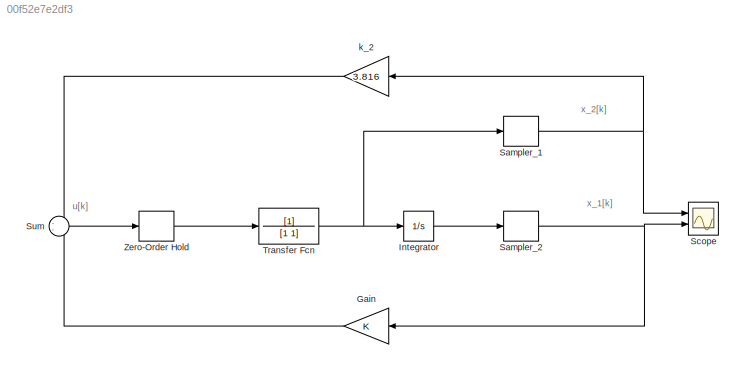
MODEL slx_00f52e7e2df3
KIND model
CONFIG AbsTol = auto
CONFIG EnableMultiTasking = off
CONFIG FixedStep = auto
CONFIG MaxStep = auto
CONFIG MinStep = auto
CONFIG RelTol = 1e-3
CONFIG SampleTimeConstraint = Unconstrained
CONFIG Solver = VariableStepAuto
CONFIG SolverName = VariableStepAuto
CONFIG StartTime = 0.0
CONFIG StopTime = 10.0
BLOCK [Gain] Gain
  OutDataTypeStr = Inherit: Inherit via internal rule
  ParamDataTypeStr = Inherit: Inherit via internal rule
  SaturateOnIntegerOverflow = off
BLOCK [Integrator] Integrator
  InitialCondition = 4
  Ports = [1, 1]
BLOCK [ZeroOrderHold] Sampler_1
  SampleTime = -1
BLOCK [ZeroOrderHold] Sampler_2
  SampleTime = -1
BLOCK [Scope] Scope
  Floating = off
  NumInputPorts = 2
  Ports = [2]
  ScopeSpecificationString = Simulink.scopes.TimeScopeBlockCfg('CurrentConfiguration', extmgr.ConfigurationSet(extmgr.Configuration('Core','General UI',true,'FigureColor',[1 1 1]),extmgr.Configuration('Core','Source UI',true),extmgr.Configuration('Sources','WiredSimulink',true),extmgr.Configuration('Visuals','Time Domain',true,'SerializedDisplays',{struct('MinYLimReal','-34.86672','MaxYLimReal','112.904','YLabelReal','x_i[k]'...<+1702ch>
BLOCK [Sum] Sum
  IconShape = round
  InputSameDT = off
  Inputs = --
  OutDataTypeStr = Inherit: Inherit via internal rule
  Ports = [2, 1]
  SaturateOnIntegerOverflow = off
BLOCK [TransferFcn] Transfer Fcn
  Denominator = [1 1]
BLOCK [ZeroOrderHold] Zero-Order Hold
  SampleTime = -1
BLOCK [Gain] k_2
  Gain = 3.816
  OutDataTypeStr = Inherit: Inherit via internal rule
  ParamDataTypeStr = Inherit: Inherit via internal rule
  SaturateOnIntegerOverflow = off
ANNOTATION (root): u[k]
ANNOTATION (root): x_1[k]
ANNOTATION (root): x_2[k]
LINE Gain:1 -> Sum:2
LINE Integrator:1 -> Sampler_2:1
NET Sampler_1:1 -> Scope:1, k_2:1
NET Sampler_2:1 -> Gain:1, Scope:2
LINE Sum:1 -> Zero-Order Hold:1
NET Transfer Fcn:1 -> Integrator:1, Sampler_1:1
LINE Zero-Order Hold:1 -> Transfer Fcn:1
LINE k_2:1 -> Sum:1
note: NET lines group one-source signal fan-out (src -> all destinations, sorted); 1:1 wires keep LINE
